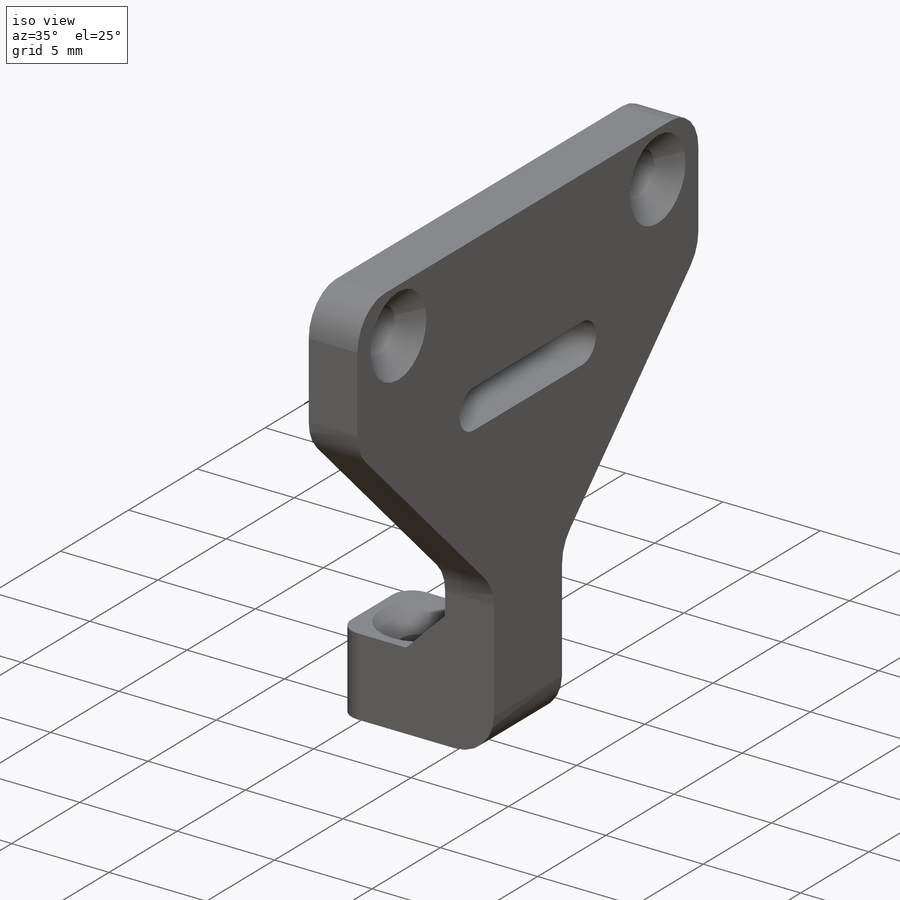
[diagram: iso view]
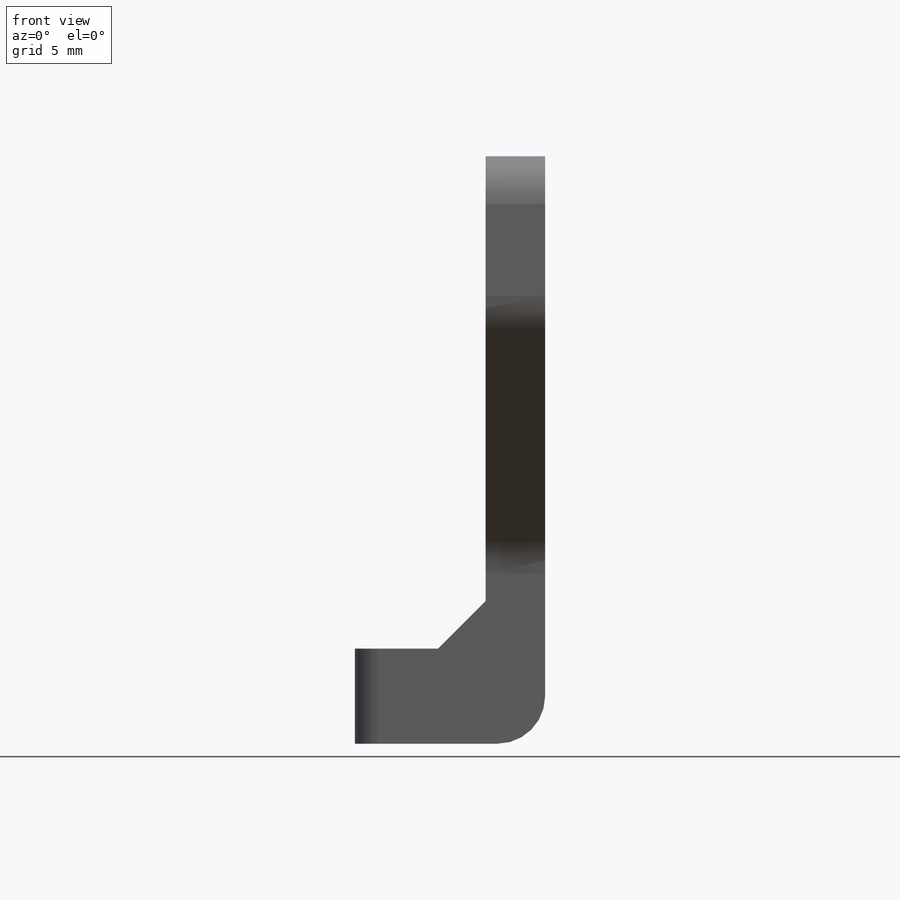
[diagram: front view]
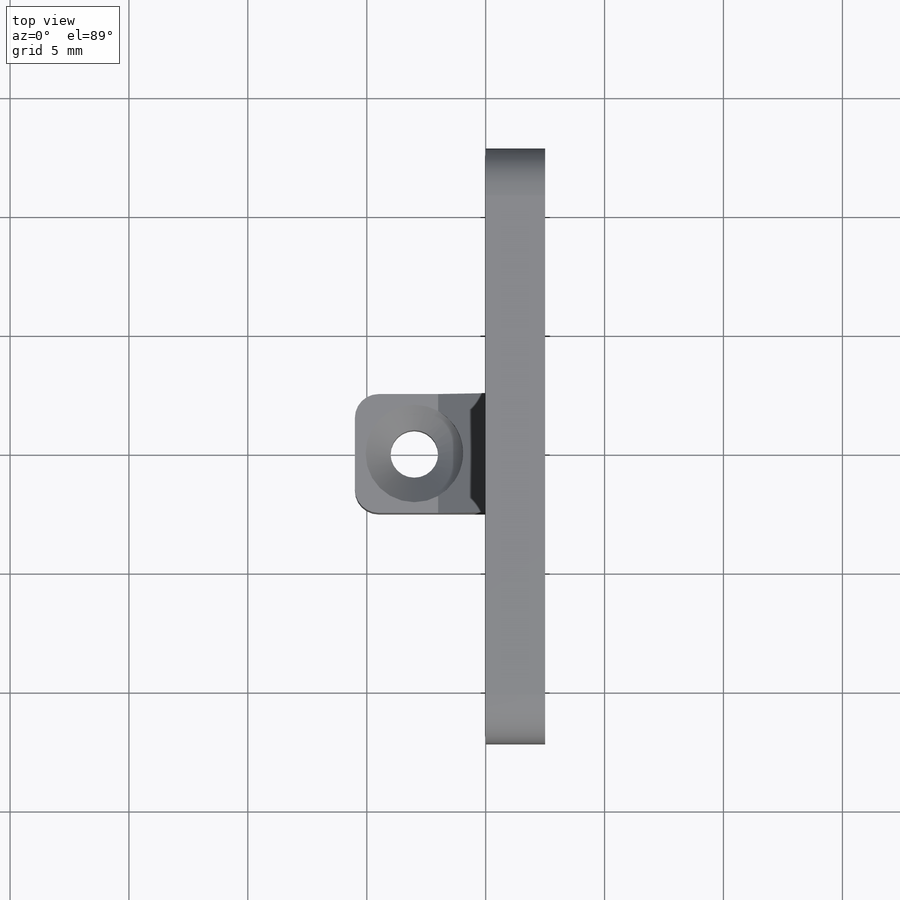
[diagram: top view]
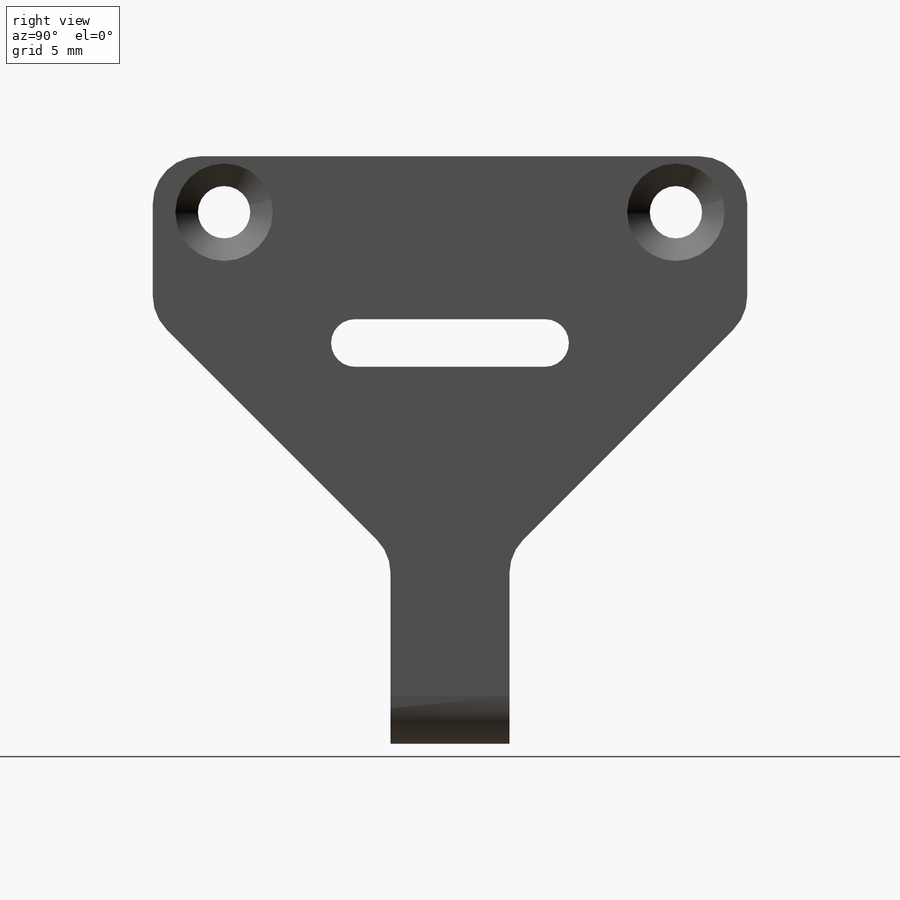
[diagram: right view]
SOLIDWORKS PART (.sldprt)
format: sldprt  version: not decoded by parser v0  size: 378,368 bytes
history: native  units: mm
features: sketch x10, plane x3, extrude x3, cut_extrude x3, fillet x3, hole x2, material x1 (+10 scaffold rows collapsed)
feature tree (35):
  scaffold x10  (default folders/planes/origin — collapsed)
  material  "材质 <未指定>"
  plane  "前视基准面"
  plane  "上视基准面"
  plane  "右视基准面"
  sketch  "草图1"  dims[c1.D3=2.2mm c1.D1=9.5mm c1.D2=9.5mm c1.D4=4.7mm c1.D5=25.0mm c1.D6=1.9mm c2.D1=9.5mm]
  extrude  "凸台-拉伸1"  Depth=2.5mm
  hole  "M2 平头机械螺钉的锥形沉头孔1"  [1 undecoded]
  sketch  "3D草图1"
  sketch  "草图2"  dims[hole-wizard template sketch: 54 standard entries collapsed; hole parameters kept: c17.通孔孔直径=2.0mm c17.通孔孔深度=2.5mm c17.近端锥形沉头孔直径=4.1mm c17.D4=~3.666174mm c17.近端锥形沉头孔角度=90.0deg]
  sketch  "草图3"  dims[c1.D1=5.0mm c1.D2=3.0mm c1.D3=3.0mm c1.D4=2.5mm c1.D5=5.0mm c2.D5=125.0deg c2.D6=25.0mm c2.D1=14.0mm c2.D2=5.0mm c3.D2=145.0deg c3.D3=2.8mm c3.D5=3.0mm c4.D2=~8.311281mm c5.D2=135.0deg c5.D3=4.0mm c5.D4=2.6mm c5.D6=5.5mm c5.D7=16.0mm c6.D2=2.0mm c7.D2=135.0deg]
  extrude  "凸台-拉伸2"  Depth=5mm
  sketch  "Sketch1"  dims[D2=1.7mm D1=3.0mm]
  cut_extrude  "Extrude1"  Depth=10mm
  hole  "CSK for M2 Flat Head Machine Screw1"  [1 undecoded]
  sketch  "3DSketch1"
  sketch  "Sketch2"  dims[hole-wizard template sketch: 54 standard entries collapsed; hole parameters kept: c17.通孔孔直径=2.0mm c17.通孔孔深度=~4.000025mm c17.近端锥形沉头孔直径=4.1mm c17.D4=~3.666174mm c17.近端锥形沉头孔角度=90.0deg]
  sketch  "Sketch3"
  cut_extrude  "Extrude2"  Depth=10mm
  sketch  "Sketch6"  dims[c1.D1=~13.381731mm c2.D1=45.0deg c2.D2=2.0mm]
  extrude  "Extrude4"  [1 undecoded]
  sketch  "Sketch7"  dims[D1=2.0mm D2=8.0mm D3=5.5mm]
  cut_extrude  "Extrude5"  Depth=10mm
  fillet  "Fillet1"  Radius=2mm
  fillet  "Fillet2"  Radius=1mm
  fillet  "Fillet3"  Radius=2mm
decode coverage: 15 of 21 modeling features carry decoded parameters
note: ~ marks probable driven/reference dimensions
note: 3 parameter values undecoded
summary: no parameter record found for 3 features
note: suppression state not decoded; provenance and decode notes live in map.json
